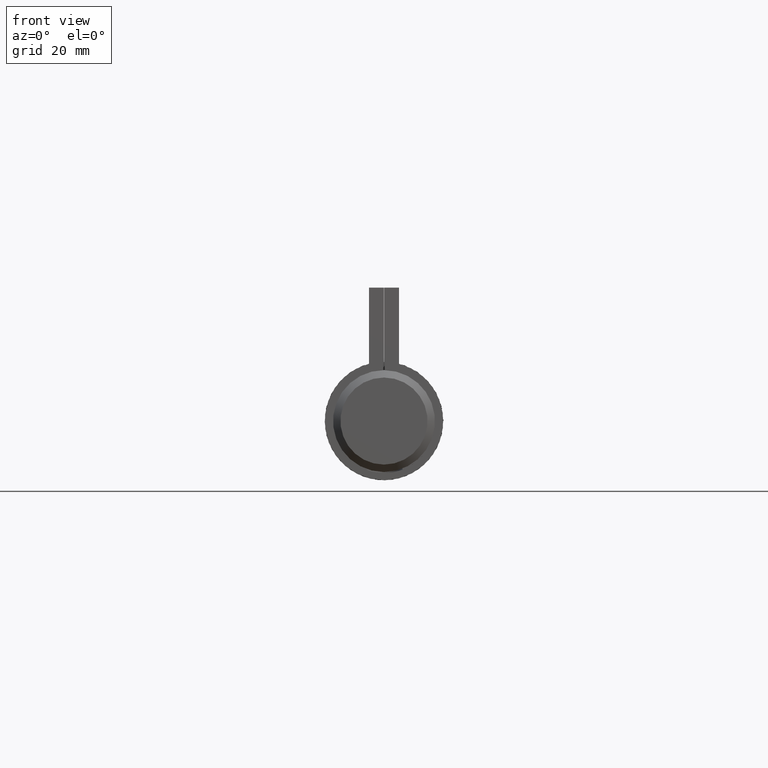
[diagram: clean part render]
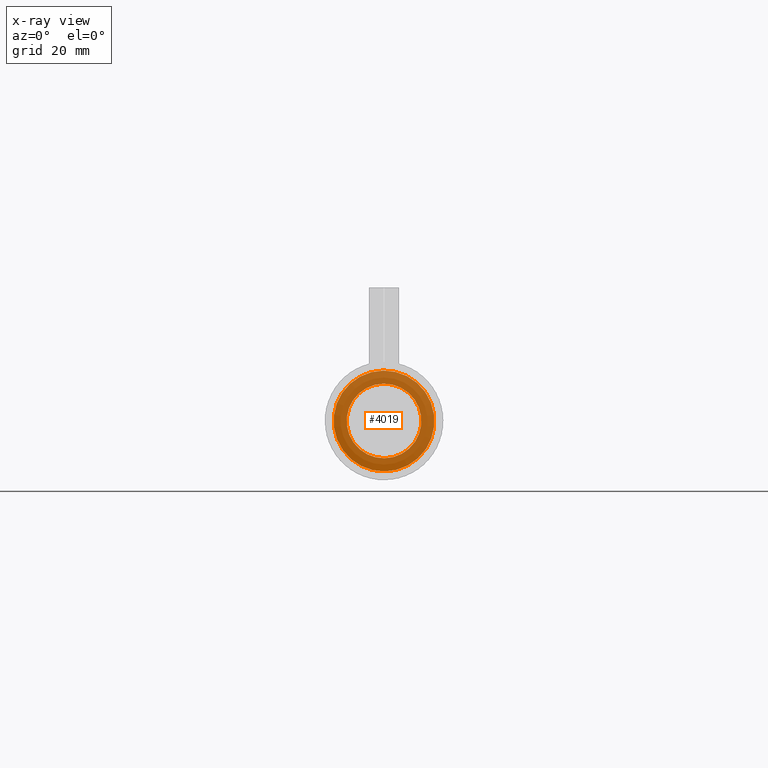
[diagram: x-ray — body ghosted, one internal face saturated and labeled with its STEP entity id]
A machine part, front view, then the same camera in x-ray: the body is ghosted and one INTERNAL B-rep face — a face not visible from any outside direction — is saturated and labeled: STEP entity #4019.
In plain terms, the highlighted planar face has unit normal (0, 1, 0).
Its self-contained STEP definition (entity closure, byte-faithful):
#497 = DIRECTION ( 'NONE',  ( 0.000000000000000000, 1.000000000000000000, 0.000000000000000000 ) ) ;
#898 = AXIS2_PLACEMENT_3D ( 'NONE', #7578, #9912, #3634 ) ;
#1192 = FACE_BOUND ( 'NONE', #4625, .T. ) ;
#1369 = EDGE_CURVE ( 'NONE', #1828, #1828, #7153, .T. ) ;
#1828 = VERTEX_POINT ( 'NONE', #6094 ) ;
#2069 = DIRECTION ( 'NONE',  ( 0.000000000000000000, 0.000000000000000000, 1.000000000000000000 ) ) ;
#2590 = ORIENTED_EDGE ( 'NONE', *, *, #1369, .F. ) ;
#2762 = CARTESIAN_POINT ( 'NONE',  ( 0.000000000000000000, 8.349999999999999645, 0.000000000000000000 ) ) ;
#2914 = EDGE_LOOP ( 'NONE', ( #6825 ) ) ;
#3634 = DIRECTION ( 'NONE',  ( 0.000000000000000000, 0.000000000000000000, 1.000000000000000000 ) ) ;
#3938 = CIRCLE ( 'NONE', #5527, 13.59999999999999964 ) ;
#4019 = ADVANCED_FACE ( 'NONE', ( #9922, #1192 ), #8294, .T. ) ;
#4625 = EDGE_LOOP ( 'NONE', ( #2590 ) ) ;
#5208 = CARTESIAN_POINT ( 'NONE',  ( 0.000000000000000000, 8.349999999999999645, 0.000000000000000000 ) ) ;
#5527 = AXIS2_PLACEMENT_3D ( 'NONE', #5208, #497, #2069 ) ;
#5904 = VERTEX_POINT ( 'NONE', #7664 ) ;
#6094 = CARTESIAN_POINT ( 'NONE',  ( 0.000000000000000000, 8.349999999999999645, 10.07499999999999929 ) ) ;
#6825 = ORIENTED_EDGE ( 'NONE', *, *, #8173, .T. ) ;
#7153 = CIRCLE ( 'NONE', #898, 10.07499999999999929 ) ;
#7578 = CARTESIAN_POINT ( 'NONE',  ( 0.000000000000000000, 8.349999999999999645, 0.000000000000000000 ) ) ;
#7664 = CARTESIAN_POINT ( 'NONE',  ( 0.000000000000000000, 8.349999999999999645, 13.59999999999999964 ) ) ;
#7847 = AXIS2_PLACEMENT_3D ( 'NONE', #2762, #9815, #8326 ) ;
#8173 = EDGE_CURVE ( 'NONE', #5904, #5904, #3938, .T. ) ;
#8294 = PLANE ( 'NONE',  #7847 ) ;
#8326 = DIRECTION ( 'NONE',  ( 0.000000000000000000, -0.000000000000000000, 1.000000000000000000 ) ) ;
#9815 = DIRECTION ( 'NONE',  ( 0.000000000000000000, 1.000000000000000000, 0.000000000000000000 ) ) ;
#9912 = DIRECTION ( 'NONE',  ( 0.000000000000000000, 1.000000000000000000, 0.000000000000000000 ) ) ;
#9922 = FACE_OUTER_BOUND ( 'NONE', #2914, .T. ) ;